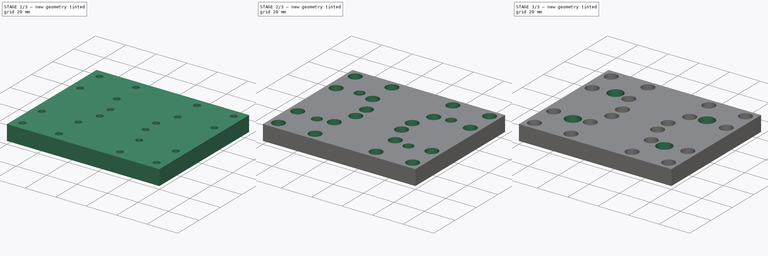
[diagram: build sequence overview — one tinted view per stage of 3, left to right]
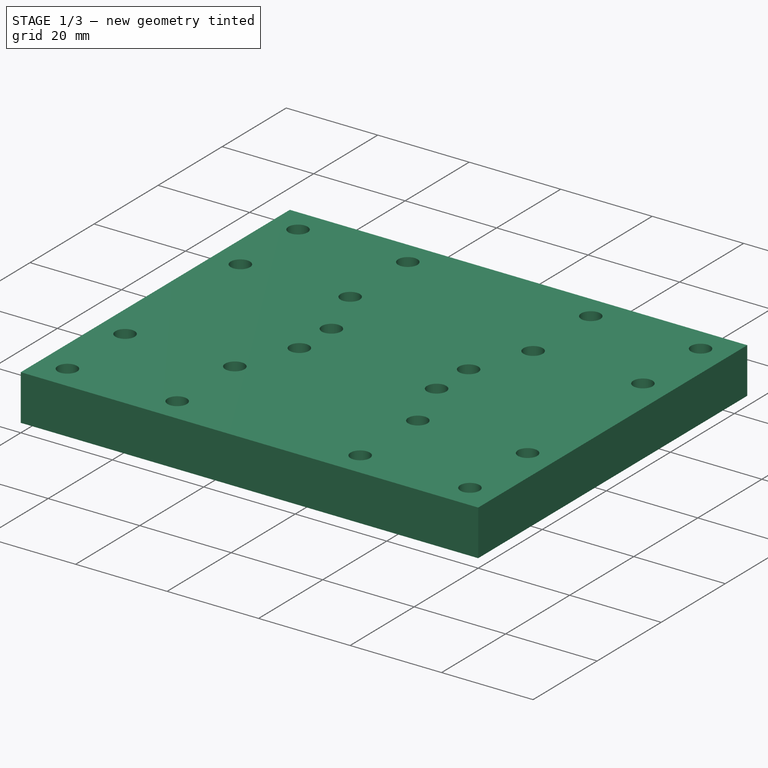
[diagram: stage 1 of 3 — iso view after this stage's code; geometry added in this stage tinted green]
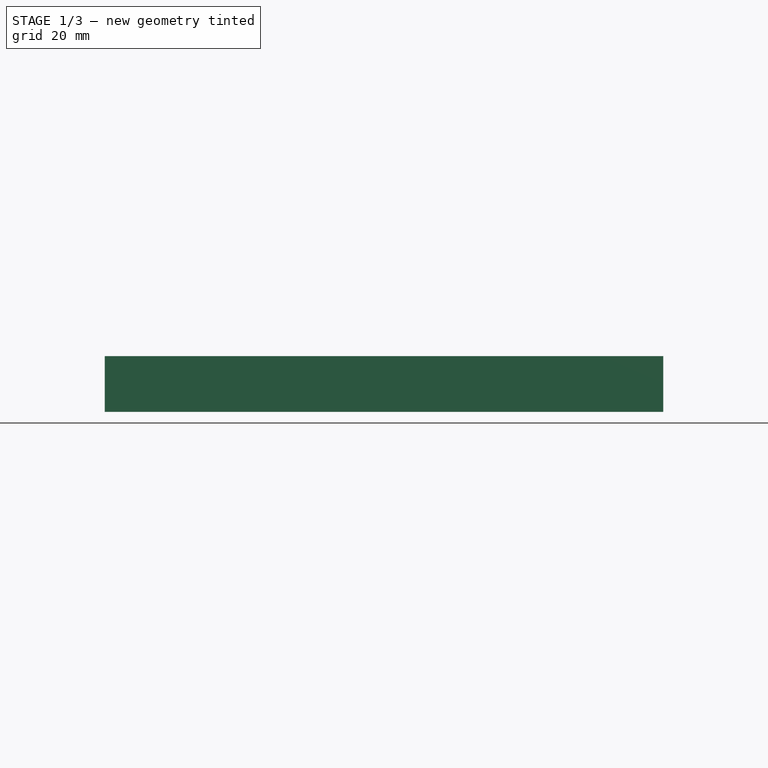
[diagram: stage 1 of 3 — front view after this stage's code; geometry added in this stage tinted green]
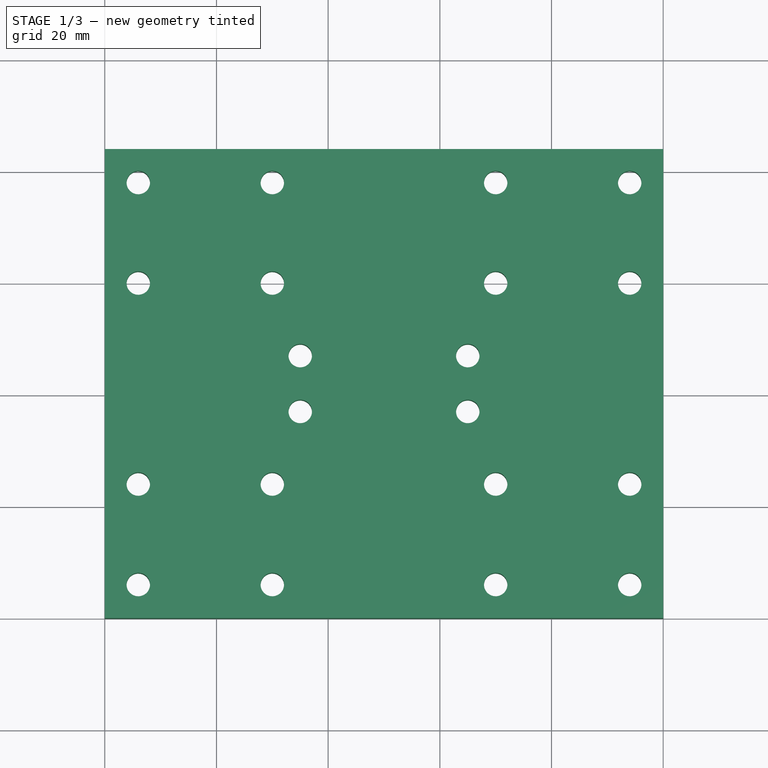
[diagram: stage 1 of 3 — top view after this stage's code; geometry added in this stage tinted green]
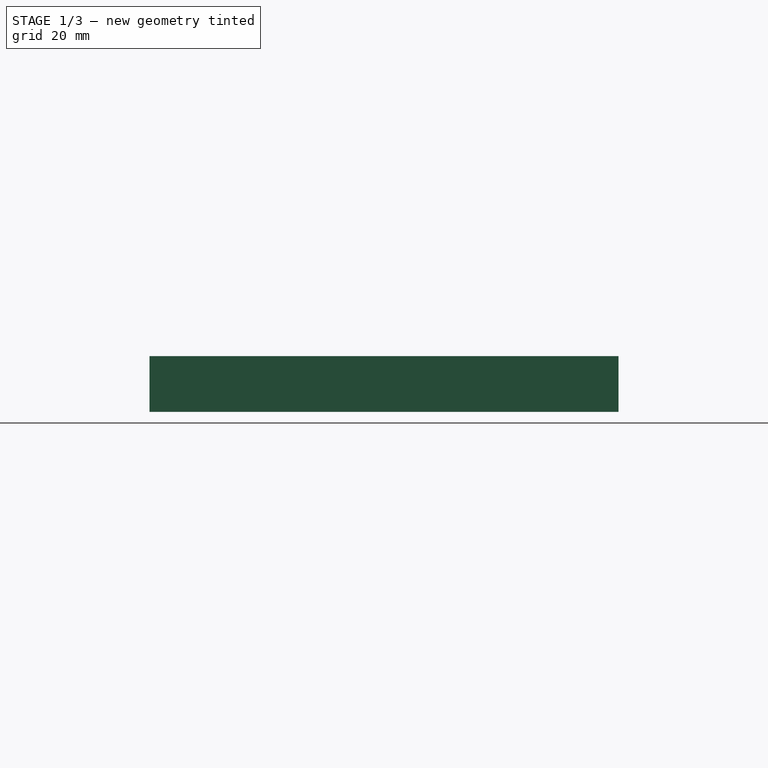
[diagram: stage 1 of 3 — right view after this stage's code; geometry added in this stage tinted green]
FCSTD DOCUMENT  (FreeCAD 0.18R16110 (Git))
Label: carriageplate2
License: All rights reserved
LicenseURL: http://en.wikipedia.org/wiki/All_rights_reserved
objects: Sketcher::SketchObject×5, PartDesign::Pocket×5, PartDesign::Pad×1, PartDesign::Body×1
note: 18 computed .brp shape members not serialized (recipe doc carries the construction recipe); baked Part::Feature solids carry a one-line shape summary decoded from their .brp

FEATURE [Sketcher::SketchObject] Sketch
  MapMode = 5
  Support = -> [XY_Plane]
  sketch-geometry (4):
    g0: LineSegment StartX=0 StartY=84 StartZ=0 EndX=100 EndY=84 EndZ=0
    g1: LineSegment StartX=100 StartY=84 StartZ=0 EndX=100 EndY=0 EndZ=0
    g2: LineSegment StartX=100 StartY=0 StartZ=0 EndX=0 EndY=0 EndZ=0
    g3: LineSegment StartX=0 StartY=0 StartZ=0 EndX=0 EndY=84 EndZ=0
  constraints (11):
    c: Coincident(g0,g1)
    c: Coincident(g1,g2)
    c: Coincident(g2,g3)
    c: Coincident(g3,g0)
    c: Horizontal(g0)
    c: Horizontal(g2)
    c: Vertical(g1)
    c: Vertical(g3)
    c: Coincident(g2,g-1)
    c: DistanceX(g0,g0) = 100
    c: DistanceY(g3,g3) = 84
FEATURE [PartDesign::Pad] Pad
  Length = 10
  Length2 = 100
  Profile = -> Sketch
  Type = 0
FEATURE [Sketcher::SketchObject] Sketch001
  MapMode = 5
  Placement = pos=(0,0,10) rot=(0,0,1;0rad)
  Support = -> [Pad]
  sketch-geometry (20):
    g0: Circle CenterX=6 CenterY=78 CenterZ=0 NormalX=0 NormalY=0 NormalZ=1 AngleXU=0 Radius=2.1
    g1: Circle CenterX=30 CenterY=78 CenterZ=0 NormalX=0 NormalY=0 NormalZ=1 AngleXU=0 Radius=2.1
    g2: Circle CenterX=6 CenterY=60 CenterZ=0 NormalX=0 NormalY=0 NormalZ=1 AngleXU=0 Radius=2.1
    g3: Circle CenterX=30 CenterY=60 CenterZ=0 NormalX=0 NormalY=0 NormalZ=1 AngleXU=0 Radius=2.1
    g4: Circle CenterX=6 CenterY=24 CenterZ=0 NormalX=0 NormalY=0 NormalZ=1 AngleXU=0 Radius=2.1
    g5: Circle CenterX=30 CenterY=24 CenterZ=0 NormalX=0 NormalY=0 NormalZ=1 AngleXU=0 Radius=2.1
    g6: Circle CenterX=6 CenterY=6 CenterZ=0 NormalX=0 NormalY=0 NormalZ=1 AngleXU=0 Radius=2.1
    g7: Circle CenterX=30 CenterY=6 CenterZ=0 NormalX=0 NormalY=0 NormalZ=1 AngleXU=0 Radius=2.1
    g8: Circle CenterX=70 CenterY=78 CenterZ=0 NormalX=0 NormalY=0 NormalZ=1 AngleXU=0 Radius=2.1
    g9: Circle CenterX=94 CenterY=78 CenterZ=0 NormalX=0 NormalY=0 NormalZ=1 AngleXU=0 Radius=2.1
    g10: Circle CenterX=70 CenterY=60 CenterZ=0 NormalX=0 NormalY=0 NormalZ=1 AngleXU=0 Radius=2.1
    g11: Circle CenterX=94 CenterY=60 CenterZ=0 NormalX=0 NormalY=0 NormalZ=1 AngleXU=0 Radius=2.1
    g12: Circle CenterX=70 CenterY=24 CenterZ=0 NormalX=0 NormalY=0 NormalZ=1 AngleXU=0 Radius=2.1
    g13: Circle CenterX=94 CenterY=24 CenterZ=0 NormalX=0 NormalY=0 NormalZ=1 AngleXU=0 Radius=2.1
    g14: Circle CenterX=70 CenterY=6 CenterZ=0 NormalX=0 NormalY=0 NormalZ=1 AngleXU=0 Radius=2.1
    g15: Circle CenterX=94 CenterY=6 CenterZ=0 NormalX=0 NormalY=0 NormalZ=1 AngleXU=0 Radius=2.1
    g16: Circle CenterX=35 CenterY=47 CenterZ=0 NormalX=0 NormalY=0 NormalZ=1 AngleXU=0 Radius=2.1
    g17: Circle CenterX=65 CenterY=47 CenterZ=0 NormalX=0 NormalY=0 NormalZ=1 AngleXU=0 Radius=2.1
    g18: Circle CenterX=35 CenterY=37 CenterZ=0 NormalX=0 NormalY=0 NormalZ=1 AngleXU=0 Radius=2.1
    g19: Circle CenterX=65 CenterY=37 CenterZ=0 NormalX=0 NormalY=0 NormalZ=1 AngleXU=0 Radius=2.1
  constraints (60):
    c: DistanceX(g-1,g6) = 6
    c: DistanceX(g-1,g15) = 94
    c: DistanceX(g6,g4) = 0
    c: DistanceX(g4,g2) = 0
    c: DistanceX(g2,g0) = 0
    c: DistanceX(g13,g15) = 0
    c: DistanceX(g11,g13) = 0
    c: DistanceX(g9,g11) = 0
    c: DistanceX(g6,g7) = 24
    c: DistanceX(g14,g15) = 24
    c: DistanceX(g5,g7) = 0
    c: DistanceX(g3,g5) = 0
    c: DistanceX(g3,g1) = 0
    c: DistanceX(g12,g14) = 0
    c: DistanceX(g10,g12) = 0
    c: DistanceX(g8,g10) = 0
    c: DistanceY(g-1,g6) = 6
    c: DistanceY(g-1,g0) = 78
    c: DistanceY(g6,g4) = 18
    c: DistanceY(g2,g0) = 18
    c: DistanceY(g6,g7) = 0
    c: DistanceY(g7,g14) = 0
    c: DistanceY(g14,g15) = 0
    c: DistanceY(g4,g5) = 0
    c: DistanceY(g5,g12) = 0
    c: DistanceY(g12,g13) = 0
    c: DistanceY(g3,g2) = 0
    c: DistanceY(g3,g10) = 0
    c: DistanceY(g10,g11) = 0
    c: DistanceY(g1,g0) = 0
    c: DistanceY(g8,g1) = 0
    c: DistanceY(g9,g8) = 0
    c: Radius(g0) = 2.1
    c: Equal(g0,g2)
    c: Equal(g0,g4)
    c: Equal(g0,g6)
    c: Equal(g0,g1)
    c: Equal(g0,g3)
    c: Equal(g0,g5)
    c: Equal(g0,g7)
    c: Equal(g0,g14)
    c: Equal(g0,g12)
    c: Equal(g0,g10)
    c: Equal(g0,g8)
    c: Equal(g0,g9)
    c: Equal(g0,g11)
    c: Equal(g0,g13)
    c: Equal(g0,g15)
    c: DistanceX(g-1,g18) = 35
    c: DistanceY(g-1,g18) = 37
    c: DistanceX(g18,g19) = 30
    c: DistanceY(g18,g19) = 0
    c: DistanceX(g16,g18) = 0
    c: DistanceY(g18,g16) = 10
    c: DistanceY(g16,g17) = 0
    c: DistanceX(g17,g19) = 0
    c: Radius(g16) = 2.1
    c: Equal(g16,g17)
    c: Equal(g16,g19)
    c: Equal(g16,g18)
FEATURE [PartDesign::Pocket] Pocket
  BaseFeature = -> Pad
  Length = 10
  Length2 = 100
  Profile = -> Sketch001
  Type = 0
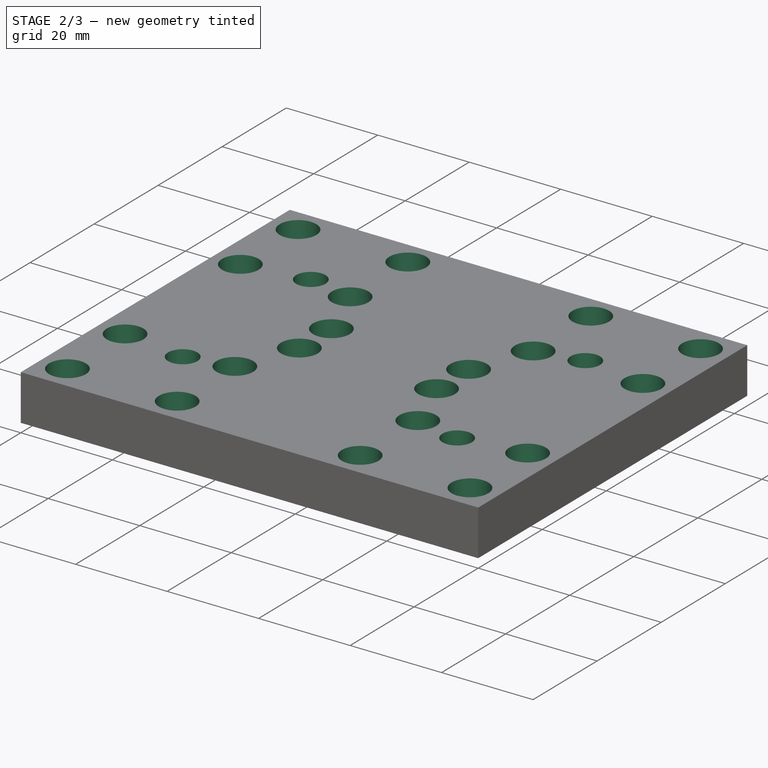
[diagram: stage 2 of 3 — iso view after this stage's code; geometry added in this stage tinted green]
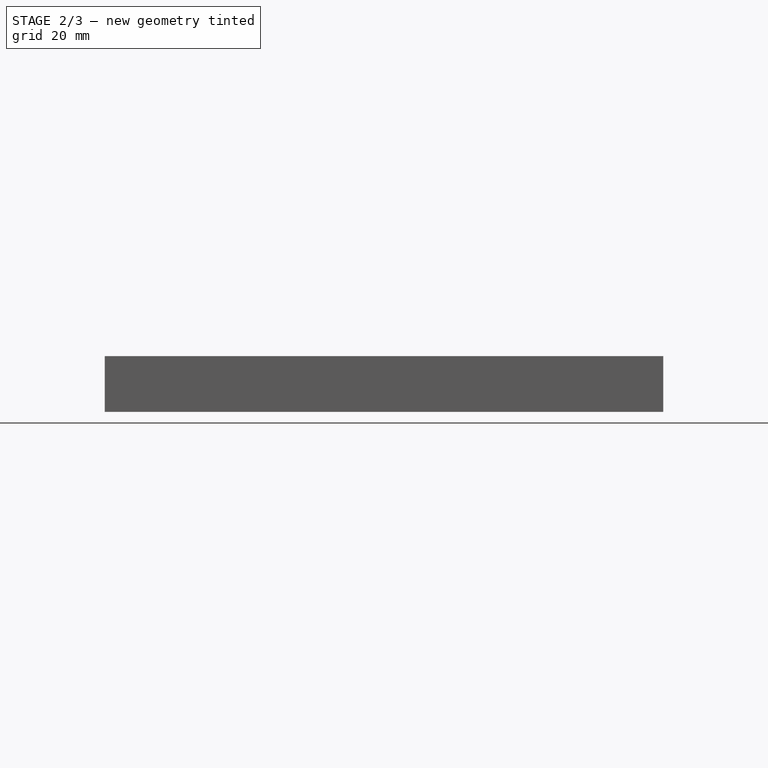
[diagram: stage 2 of 3 — front view after this stage's code; geometry added in this stage tinted green]
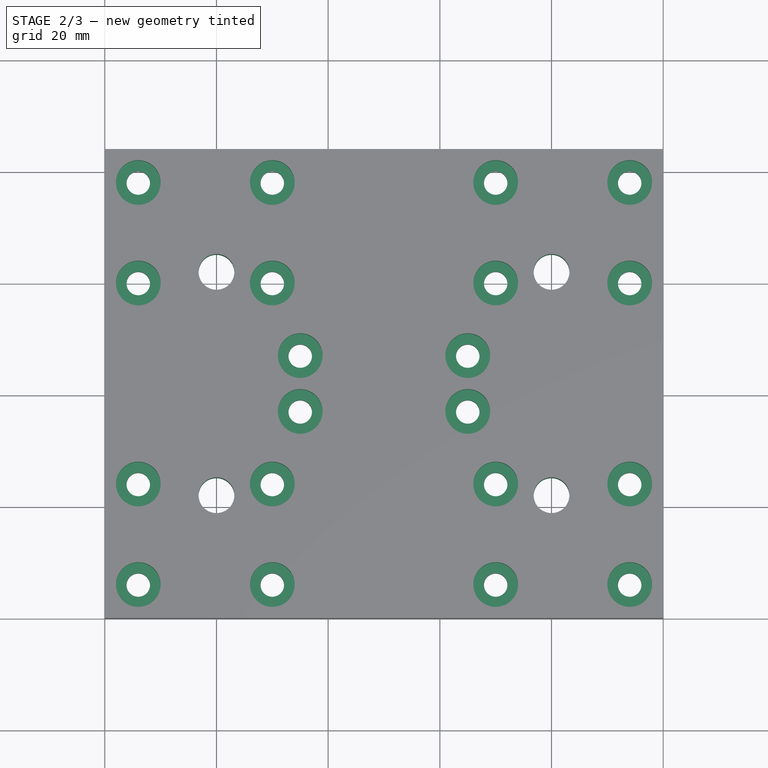
[diagram: stage 2 of 3 — top view after this stage's code; geometry added in this stage tinted green]
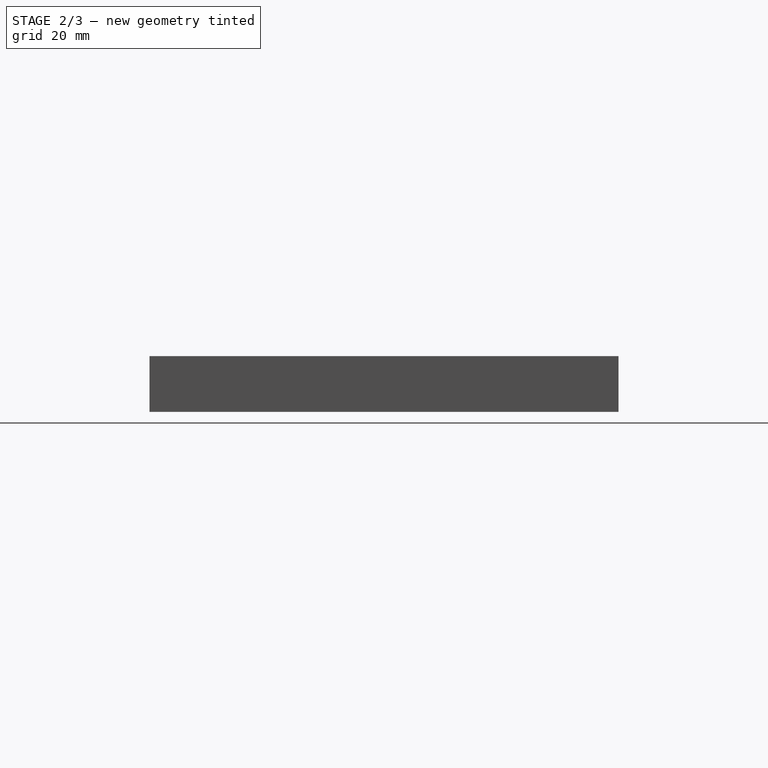
[diagram: stage 2 of 3 — right view after this stage's code; geometry added in this stage tinted green]
FEATURE [Sketcher::SketchObject] Sketch002
  MapMode = 5
  Placement = pos=(0,0,10) rot=(0,0,1;0rad)
  Support = -> [Pocket]
  sketch-geometry (4):
    g0: Circle CenterX=20 CenterY=62 CenterZ=0 NormalX=0 NormalY=0 NormalZ=1 AngleXU=0 Radius=3.2
    g1: Circle CenterX=20 CenterY=22 CenterZ=0 NormalX=0 NormalY=0 NormalZ=1 AngleXU=0 Radius=3.2
    g2: Circle CenterX=80 CenterY=62 CenterZ=0 NormalX=0 NormalY=0 NormalZ=1 AngleXU=0 Radius=3.2
    g3: Circle CenterX=80 CenterY=22 CenterZ=0 NormalX=0 NormalY=0 NormalZ=1 AngleXU=0 Radius=3.2
  constraints (12):
    c: DistanceX(g-1,g1) = 20
    c: DistanceY(g-1,g1) = 22
    c: DistanceX(g1,g3) = 60
    c: DistanceY(g1,g0) = 40
    c: DistanceY(g1,g3) = 0
    c: DistanceY(g2,g0) = 0
    c: DistanceX(g2,g3) = 0
    c: Radius(g0) = 3.2
    c: Equal(g0,g2)
    c: Equal(g0,g3)
    c: Equal(g0,g1)
    c: DistanceX(g1,g0) = 0
FEATURE [PartDesign::Pocket] Pocket001
  BaseFeature = -> Pocket
  Length = 10
  Length2 = 100
  Profile = -> Sketch002
  Type = 0
FEATURE [Sketcher::SketchObject] Sketch003
  MapMode = 5
  Placement = pos=(0,0,10) rot=(0,0,1;0rad)
  Support = -> [Pocket001]
  sketch-geometry (20):
    g0: Circle CenterX=6 CenterY=78 CenterZ=0 NormalX=0 NormalY=0 NormalZ=1 AngleXU=0 Radius=4
    g1: Circle CenterX=30 CenterY=78 CenterZ=0 NormalX=0 NormalY=0 NormalZ=1 AngleXU=0 Radius=4
    g2: Circle CenterX=30 CenterY=60 CenterZ=0 NormalX=0 NormalY=0 NormalZ=1 AngleXU=0 Radius=4
    g3: Circle CenterX=6 CenterY=60 CenterZ=0 NormalX=0 NormalY=0 NormalZ=1 AngleXU=0 Radius=4
    g4: Circle CenterX=70 CenterY=78 CenterZ=0 NormalX=0 NormalY=0 NormalZ=1 AngleXU=0 Radius=4
    g5: Circle CenterX=94 CenterY=78 CenterZ=0 NormalX=0 NormalY=0 NormalZ=1 AngleXU=0 Radius=4
    g6: Circle CenterX=70 CenterY=60 CenterZ=0 NormalX=0 NormalY=0 NormalZ=1 AngleXU=0 Radius=4
    g7: Circle CenterX=94 CenterY=60 CenterZ=0 NormalX=0 NormalY=0 NormalZ=1 AngleXU=0 Radius=4
    g8: Circle CenterX=6 CenterY=24 CenterZ=0 NormalX=0 NormalY=0 NormalZ=1 AngleXU=0 Radius=4
    g9: Circle CenterX=30 CenterY=24 CenterZ=0 NormalX=0 NormalY=0 NormalZ=1 AngleXU=0 Radius=4
    g10: Circle CenterX=6 CenterY=6 CenterZ=0 NormalX=0 NormalY=0 NormalZ=1 AngleXU=0 Radius=4
    g11: Circle CenterX=30 CenterY=6 CenterZ=0 NormalX=0 NormalY=0 NormalZ=1 AngleXU=0 Radius=4
    g12: Circle CenterX=70 CenterY=24 CenterZ=0 NormalX=0 NormalY=0 NormalZ=1 AngleXU=0 Radius=4
    g13: Circle CenterX=94 CenterY=24 CenterZ=0 NormalX=0 NormalY=0 NormalZ=1 AngleXU=0 Radius=4
    g14: Circle CenterX=70 CenterY=6 CenterZ=0 NormalX=0 NormalY=0 NormalZ=1 AngleXU=0 Radius=4
    g15: Circle CenterX=94 CenterY=6 CenterZ=0 NormalX=0 NormalY=0 NormalZ=1 AngleXU=0 Radius=4
    g16: Circle CenterX=35 CenterY=47 CenterZ=0 NormalX=0 NormalY=0 NormalZ=1 AngleXU=0 Radius=4
    g17: Circle CenterX=35 CenterY=37 CenterZ=0 NormalX=0 NormalY=0 NormalZ=1 AngleXU=0 Radius=4
    g18: Circle CenterX=65 CenterY=37 CenterZ=0 NormalX=0 NormalY=0 NormalZ=1 AngleXU=0 Radius=4
    g19: Circle CenterX=65 CenterY=47 CenterZ=0 NormalX=0 NormalY=0 NormalZ=1 AngleXU=0 Radius=4
  constraints (60):
    c: DistanceY(g-1,g10) = 6
    c: DistanceX(g10,g11) = 24
    c: DistanceX(g-1,g15) = 94
    c: DistanceX(g14,g15) = 24
    c: DistanceY(g10,g8) = 18
    c: DistanceY(g-1,g0) = 78
    c: DistanceY(g3,g0) = 18
    c: DistanceY(g11,g10) = 0
    c: DistanceY(g11,g14) = 0
    c: DistanceY(g15,g14) = 0
    c: DistanceY(g8,g9) = 0
    c: DistanceY(g9,g12) = 0
    c: DistanceY(g13,g12) = 0
    c: DistanceY(g3,g2) = 0
    c: DistanceY(g6,g2) = 0
    c: DistanceY(g7,g6) = 0
    c: DistanceY(g0,g1) = 0
    c: DistanceY(g4,g1) = 0
    c: DistanceY(g5,g4) = 0
    c: DistanceX(g8,g10) = 0
    c: DistanceX(g3,g8) = 0
    c: DistanceX(g-1,g10) = 6
    c: DistanceX(g11,g9) = 0
    c: DistanceX(g9,g2) = 0
    c: DistanceX(g2,g1) = 0
    c: DistanceX(g12,g14) = 0
    c: DistanceX(g12,g6) = 0
    c: DistanceX(g4,g6) = 0
    c: DistanceX(g13,g15) = 0
    c: DistanceX(g7,g13) = 0
    c: DistanceX(g7,g5) = 0
    c: DistanceX(g-1,g17) = 35
    c: DistanceY(g-1,g17) = 37
    c: DistanceX(g17,g18) = 30
    c: DistanceY(g17,g16) = 10
    c: DistanceY(g19,g16) = 0
    c: DistanceY(g17,g18) = 0
    c: DistanceX(g19,g18) = 0
    c: DistanceX(g3,g0) = 0
    c: Radius(g0) = 4
    c: Equal(g0,g1)
    c: Equal(g0,g4)
    c: Equal(g0,g5)
    c: Equal(g0,g7)
    c: Equal(g0,g6)
    c: Equal(g0,g2)
    c: Equal(g0,g3)
    c: Equal(g0,g16)
    c: Equal(g0,g19)
    c: Equal(g0,g17)
    c: Equal(g0,g18)
    c: Equal(g0,g8)
    c: Equal(g0,g9)
    c: Equal(g0,g12)
    c: Equal(g0,g13)
    c: Equal(g0,g15)
    c: Equal(g0,g14)
    c: Equal(g0,g11)
    c: Equal(g0,g10)
    c: DistanceX(g17,g16) = 0
FEATURE [PartDesign::Pocket] Pocket002
  BaseFeature = -> Pocket001
  Length = 5
  Length2 = 100
  Profile = -> Sketch003
  Type = 0
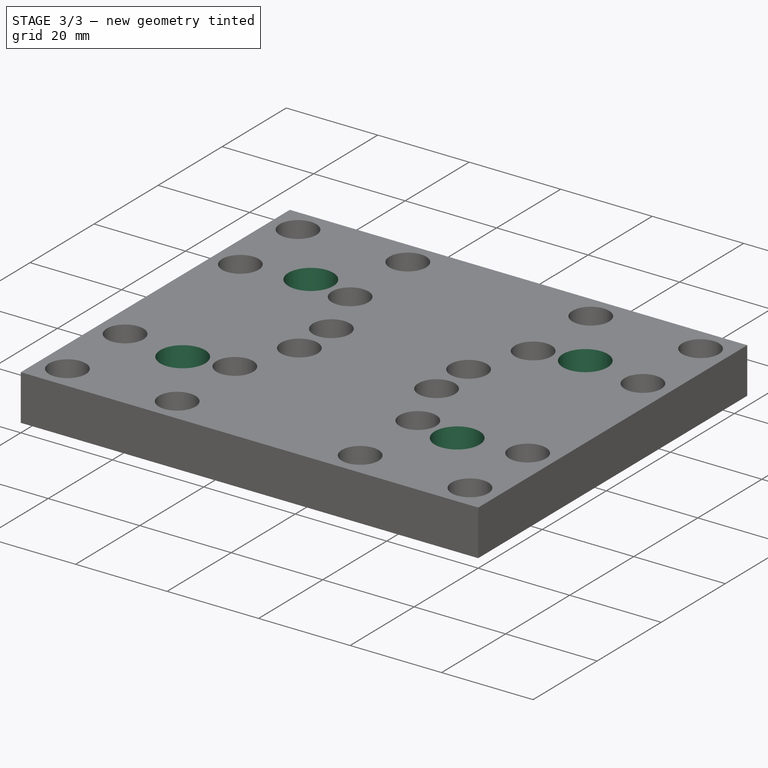
[diagram: stage 3 of 3 — iso view after this stage's code; geometry added in this stage tinted green]
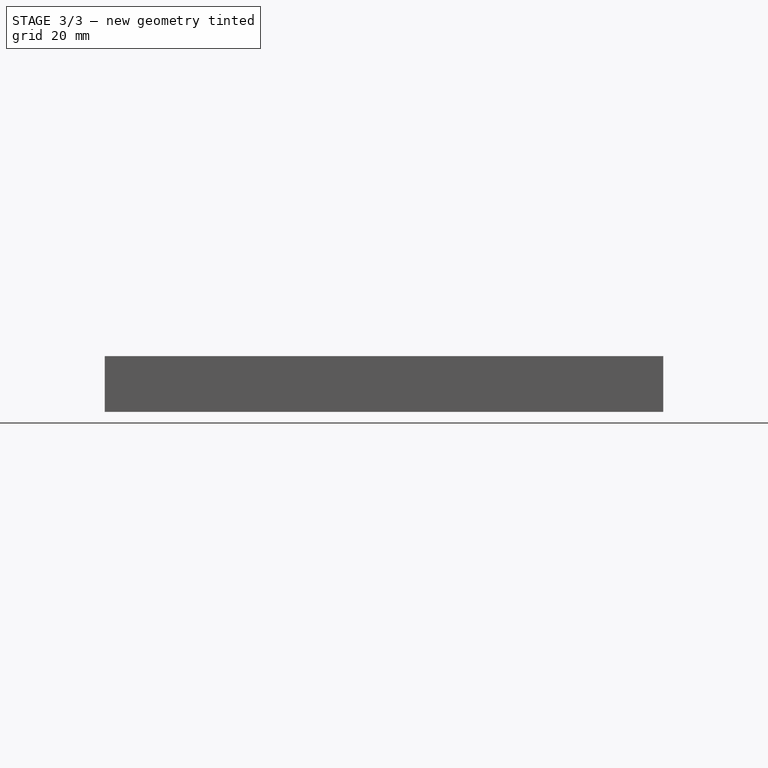
[diagram: stage 3 of 3 — front view after this stage's code; geometry added in this stage tinted green]
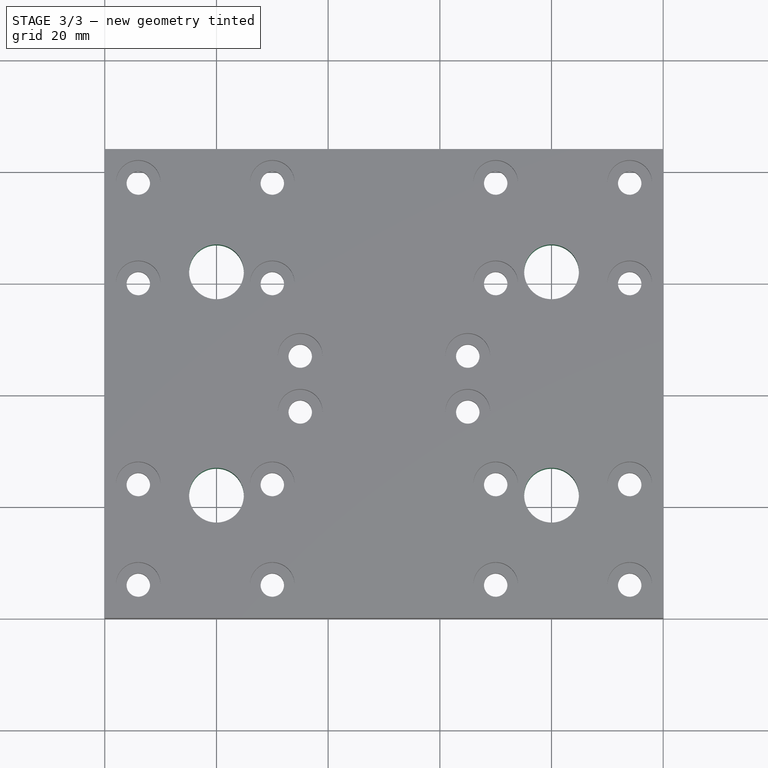
[diagram: stage 3 of 3 — top view after this stage's code; geometry added in this stage tinted green]
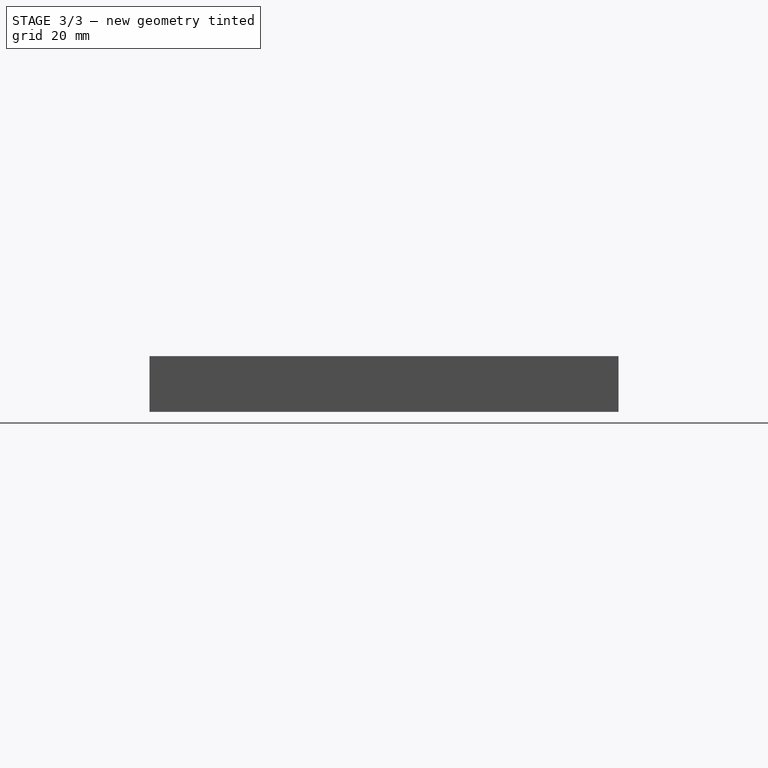
[diagram: stage 3 of 3 — right view after this stage's code; geometry added in this stage tinted green]
FEATURE [PartDesign::Pocket] Pocket003
  BaseFeature = -> Pocket002
  Length = 4
  Length2 = 100
  Profile = -> Sketch003
  Type = 0
FEATURE [Sketcher::SketchObject] Sketch004
  MapMode = 5
  Placement = pos=(0,0,0) rot=(1,0,0;3.14159rad)
  Support = -> [Pocket003]
  sketch-geometry (4):
    g0: Circle CenterX=20 CenterY=-22 CenterZ=0 NormalX=0 NormalY=0 NormalZ=1 AngleXU=0 Radius=4.9
    g1: Circle CenterX=80 CenterY=-22 CenterZ=0 NormalX=0 NormalY=0 NormalZ=1 AngleXU=0 Radius=4.9
    g2: Circle CenterX=20 CenterY=-62 CenterZ=0 NormalX=0 NormalY=0 NormalZ=1 AngleXU=0 Radius=4.9
    g3: Circle CenterX=80 CenterY=-62 CenterZ=0 NormalX=0 NormalY=0 NormalZ=1 AngleXU=0 Radius=4.9
  constraints (12):
    c: DistanceY(g0,g-1) = 22
    c: DistanceX(g-1,g0) = 20
    c: DistanceX(g0,g1) = 60
    c: DistanceY(g1,g0) = 0
    c: DistanceY(g2,g0) = 40
    c: DistanceX(g2,g0) = 0
    c: DistanceY(g2,g3) = 0
    c: DistanceX(g3,g1) = 0
    c: Radius(g0) = 4.9
    c: Equal(g0,g1)
    c: Equal(g0,g3)
    c: Equal(g0,g2)
FEATURE [PartDesign::Pocket] Pocket004
  BaseFeature = -> Pocket003
  Length = 520
  Length2 = 100
  Profile = -> Sketch004
  Type = 0
FEATURE [PartDesign::Body] Body
  Group = -> [Sketch,Pad,Sketch001,Pocket,Sketch002,Pocket001,Sketch003,Pocket002,Pocket003,Sketch004,Pocket004]
  Origin = -> Origin
  Tip = -> Pocket004
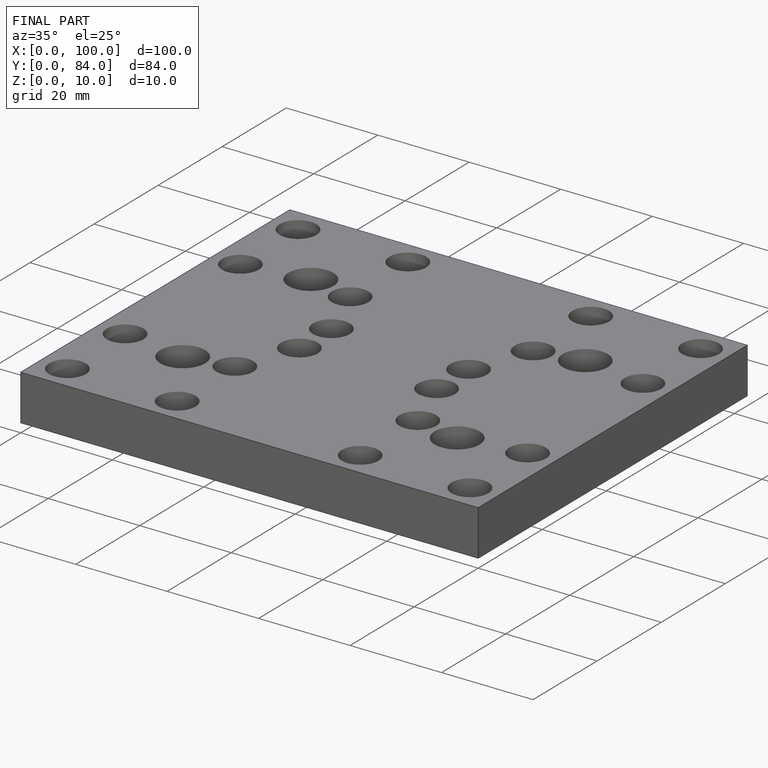
[diagram: finished part — iso view with bounding-box wireframe]
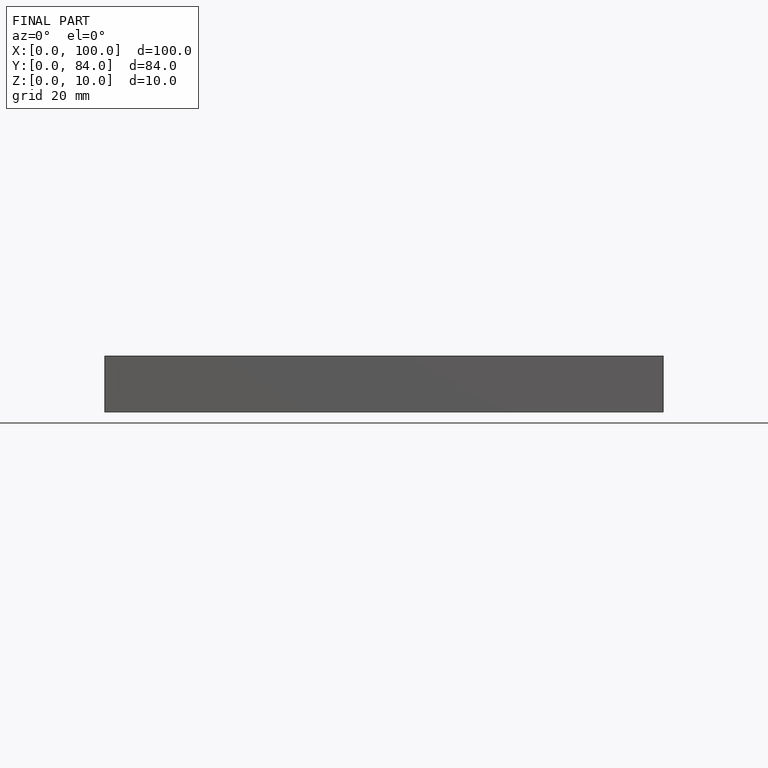
[diagram: finished part — front view with bounding-box wireframe]
